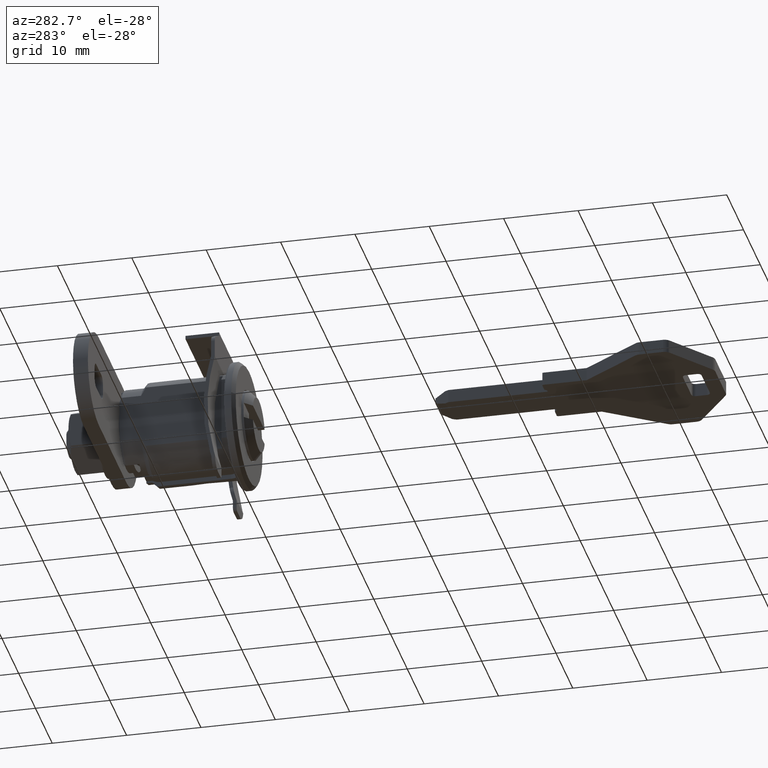
[diagram: clean part render]
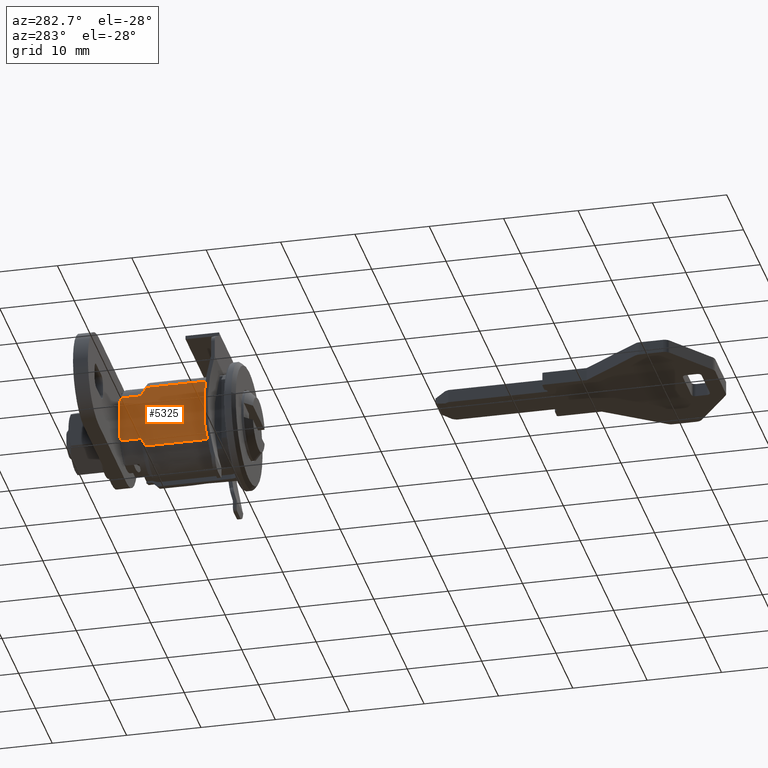
[diagram: same view with one face highlighted and labeled with its STEP entity id]
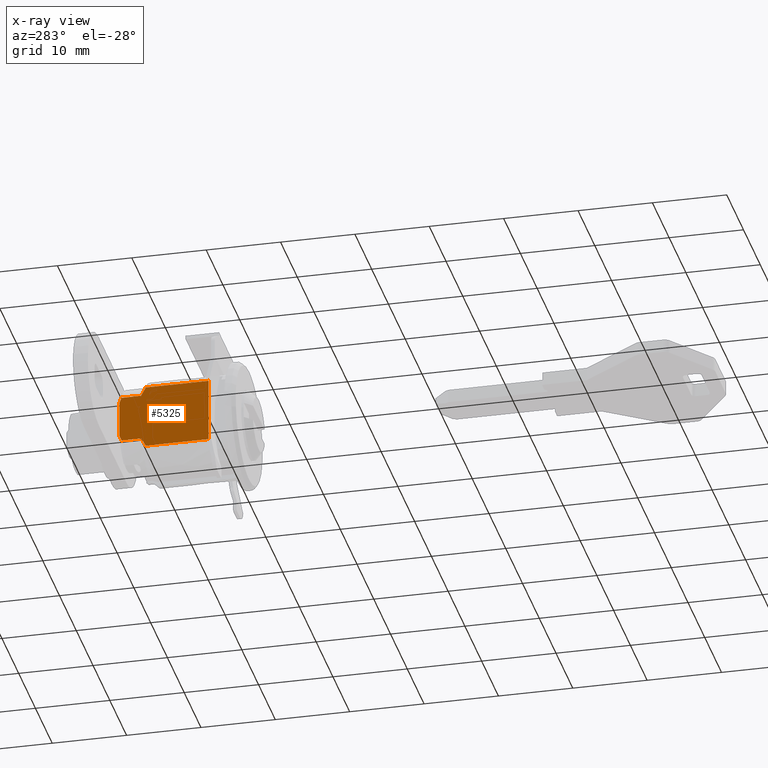
[diagram: x-ray of the same camera — body ghosted, the highlighted face saturated]
A machine part, auxiliary view. The second image highlights one B-rep face of the part: STEP entity #5325.
The next image is the same camera in x-ray: the body ghosted, the highlighted face saturated — about 0% of this face is hidden behind the body in this view.
In plain terms, the highlighted face is a freeform B-spline surface patch.
Its self-contained STEP definition (entity closure, byte-faithful):
#4194=CARTESIAN_POINT('',(15.900000000007100,5.499999999998010,3.173720214571165));
#4195=VERTEX_POINT('',#4194);
#4196=CARTESIAN_POINT('',(16.200000000007101,5.499999999998419,2.520416632296405));
#4197=VERTEX_POINT('',#4196);
#4198=CARTESIAN_POINT('',(15.900000000007100,5.499999999998010,3.173720214571165));
#4199=CARTESIAN_POINT('',(16.007189891156020,5.499999999998144,2.959253984789992));
#4200=CARTESIAN_POINT('',(16.107788434673360,5.499999999998281,2.741760977958872));
#4201=CARTESIAN_POINT('',(16.200000000007101,5.499999999998419,2.520416632296400));
#4202=QUASI_UNIFORM_CURVE('',3,(#4198,#4199,#4200,#4201),.UNSPECIFIED.,.F.,.U.);
#4203=EDGE_CURVE('',#4195,#4197,#4202,.T.);
#4270=CARTESIAN_POINT('',(15.900000000007100,5.500000000001980,-3.173720214564300));
#4271=VERTEX_POINT('',#4270);
#4285=CARTESIAN_POINT('',(16.200000000007101,5.500000000001569,-2.520416632289535));
#4286=VERTEX_POINT('',#4285);
#4287=CARTESIAN_POINT('',(16.200000000007101,5.500000000001569,-2.520416632289535));
#4288=CARTESIAN_POINT('',(16.107788434673360,5.500000000001707,-2.741760977952009));
#4289=CARTESIAN_POINT('',(16.007189891156020,5.500000000001847,-2.959253984783126));
#4290=CARTESIAN_POINT('',(15.900000000007100,5.500000000001980,-3.173720214564300));
#4291=QUASI_UNIFORM_CURVE('',3,(#4287,#4288,#4289,#4290),.UNSPECIFIED.,.F.,.U.);
#4292=EDGE_CURVE('',#4286,#4271,#4291,.T.);
#4830=CARTESIAN_POINT('',(4.200000000001535,5.499999999997290,4.330127018953985));
#4831=VERTEX_POINT('',#4830);
#4845=CARTESIAN_POINT('',(4.200000000001480,5.499999999996110,-4.330127018890461));
#4846=VERTEX_POINT('',#4845);
#4847=CARTESIAN_POINT('',(4.200000000001535,5.499999999997290,4.330127018953985));
#4848=CARTESIAN_POINT('',(4.200000000001480,5.499999999996110,-4.330127018890461));
#4849=QUASI_UNIFORM_CURVE('',1,(#4847,#4848),.UNSPECIFIED.,.F.,.U.);
#4850=EDGE_CURVE('',#4831,#4846,#4849,.T.);
#5264=CARTESIAN_POINT('',(3.600599755092270,5.500000000002967,-4.762706935184343));
#5265=CARTESIAN_POINT('',(3.600599755092270,5.499999999997019,4.762706935247868));
#5266=CARTESIAN_POINT('',(16.799401210511551,5.500000000002967,-4.762706935184343));
#5267=CARTESIAN_POINT('',(16.799401210511551,5.499999999997019,4.762706935247868));
#5268=B_SPLINE_SURFACE_WITH_KNOTS('',1,1,((#5264,#5266),(#5265,#5267)),.UNSPECIFIED.,.F.,.F.,.U.,(2,2),(2,2),(0.0,9.525413870432210),(0.0,13.198801455419289),.UNSPECIFIED.);
#5269=CARTESIAN_POINT('',(16.200000000007101,5.500000000001569,-2.520416632289535));
#5270=CARTESIAN_POINT('',(16.200000000007101,5.499999999998419,2.520416632296405));
#5271=QUASI_UNIFORM_CURVE('',1,(#5269,#5270),.UNSPECIFIED.,.F.,.U.);
#5272=EDGE_CURVE('',#4286,#4197,#5271,.T.);
#5273=ORIENTED_EDGE('',*,*,#5272,.F.);
#5274=ORIENTED_EDGE('',*,*,#4292,.T.);
#5275=CARTESIAN_POINT('',(13.299999999989980,5.500000000001980,-3.173720214564300));
#5276=VERTEX_POINT('',#5275);
#5277=CARTESIAN_POINT('',(15.900000000007100,5.500000000001980,-3.173720214564300));
#5278=CARTESIAN_POINT('',(13.299999999989980,5.500000000001980,-3.173720214564300));
#5279=QUASI_UNIFORM_CURVE('',1,(#5277,#5278),.UNSPECIFIED.,.F.,.U.);
#5280=EDGE_CURVE('',#4271,#5276,#5279,.T.);
#5281=ORIENTED_EDGE('',*,*,#5280,.T.);
#5282=CARTESIAN_POINT('',(12.649999999991500,5.500000000002700,-4.330127018890416));
#5283=VERTEX_POINT('',#5282);
#5284=CARTESIAN_POINT('',(13.299999999989980,5.500000000001980,-3.173720214564300));
#5285=CARTESIAN_POINT('',(13.274336300032189,5.500000000002012,-3.225065998421727));
#5286=CARTESIAN_POINT('',(13.248318847104500,5.500000000002045,-3.276183679220894));
#5287=CARTESIAN_POINT('',(13.044512548775121,5.500000000002291,-3.669945093770728));
#5288=CARTESIAN_POINT('',(12.852212798496520,5.500000000002495,-4.003232067120002));
#5289=CARTESIAN_POINT('',(12.649999999991500,5.500000000002700,-4.330127018890416));
#5290=B_SPLINE_CURVE_WITH_KNOTS('',3,(#5284,#5285,#5286,#5287,#5288,#5289),.UNSPECIFIED.,.F.,.U.,(4,2,4),(0.856440956057089,0.874999999999999,1.0),.UNSPECIFIED.);
#5291=EDGE_CURVE('',#5276,#5283,#5290,.T.);
#5292=ORIENTED_EDGE('',*,*,#5291,.T.);
#5293=CARTESIAN_POINT('',(12.649999999991500,5.500000000002700,-4.330127018890416));
#5294=CARTESIAN_POINT('',(4.200000000001480,5.499999999996110,-4.330127018890461));
#5295=QUASI_UNIFORM_CURVE('',1,(#5293,#5294),.UNSPECIFIED.,.F.,.U.);
#5296=EDGE_CURVE('',#5283,#4846,#5295,.T.);
#5297=ORIENTED_EDGE('',*,*,#5296,.T.);
#5298=ORIENTED_EDGE('',*,*,#4850,.F.);
#5299=CARTESIAN_POINT('',(12.649999999991500,5.499999999997290,4.330127018953985));
#5300=VERTEX_POINT('',#5299);
#5301=CARTESIAN_POINT('',(12.649999999991500,5.499999999997290,4.330127018953985));
#5302=CARTESIAN_POINT('',(4.200000000001535,5.499999999997290,4.330127018953985));
#5303=QUASI_UNIFORM_CURVE('',1,(#5301,#5302),.UNSPECIFIED.,.F.,.U.);
#5304=EDGE_CURVE('',#5300,#4831,#5303,.T.);
#5305=ORIENTED_EDGE('',*,*,#5304,.F.);
#5306=CARTESIAN_POINT('',(13.299999999989980,5.499999999998010,3.173720214571165));
#5307=VERTEX_POINT('',#5306);
#5308=CARTESIAN_POINT('',(12.649999999991500,5.499999999997290,4.330127018953985));
#5309=CARTESIAN_POINT('',(12.852383193168199,5.499999999997493,4.002948643859771));
#5310=CARTESIAN_POINT('',(13.044509848768410,5.499999999997702,3.669860481868136));
#5311=CARTESIAN_POINT('',(13.247992900361460,5.499999999997946,3.276795186699936));
#5312=CARTESIAN_POINT('',(13.274179069208030,5.499999999997978,3.225362925186850));
#5313=CARTESIAN_POINT('',(13.299999999989980,5.499999999998010,3.173720214571165));
#5314=B_SPLINE_CURVE_WITH_KNOTS('',3,(#5308,#5309,#5310,#5311,#5312,#5313),.UNSPECIFIED.,.F.,.U.,(4,2,4),(0.0,0.125000000000000,0.143736482537009),.UNSPECIFIED.);
#5315=EDGE_CURVE('',#5300,#5307,#5314,.T.);
#5316=ORIENTED_EDGE('',*,*,#5315,.T.);
#5317=CARTESIAN_POINT('',(13.299999999989980,5.499999999998010,3.173720214571165));
#5318=CARTESIAN_POINT('',(15.900000000007100,5.499999999998010,3.173720214571165));
#5319=QUASI_UNIFORM_CURVE('',1,(#5317,#5318),.UNSPECIFIED.,.F.,.U.);
#5320=EDGE_CURVE('',#5307,#4195,#5319,.T.);
#5321=ORIENTED_EDGE('',*,*,#5320,.T.);
#5322=ORIENTED_EDGE('',*,*,#4203,.T.);
#5323=EDGE_LOOP('',(#5273,#5274,#5281,#5292,#5297,#5298,#5305,#5316,#5321,#5322));
#5324=FACE_OUTER_BOUND('',#5323,.T.);
#5325=ADVANCED_FACE('',(#5324),#5268,.T.);